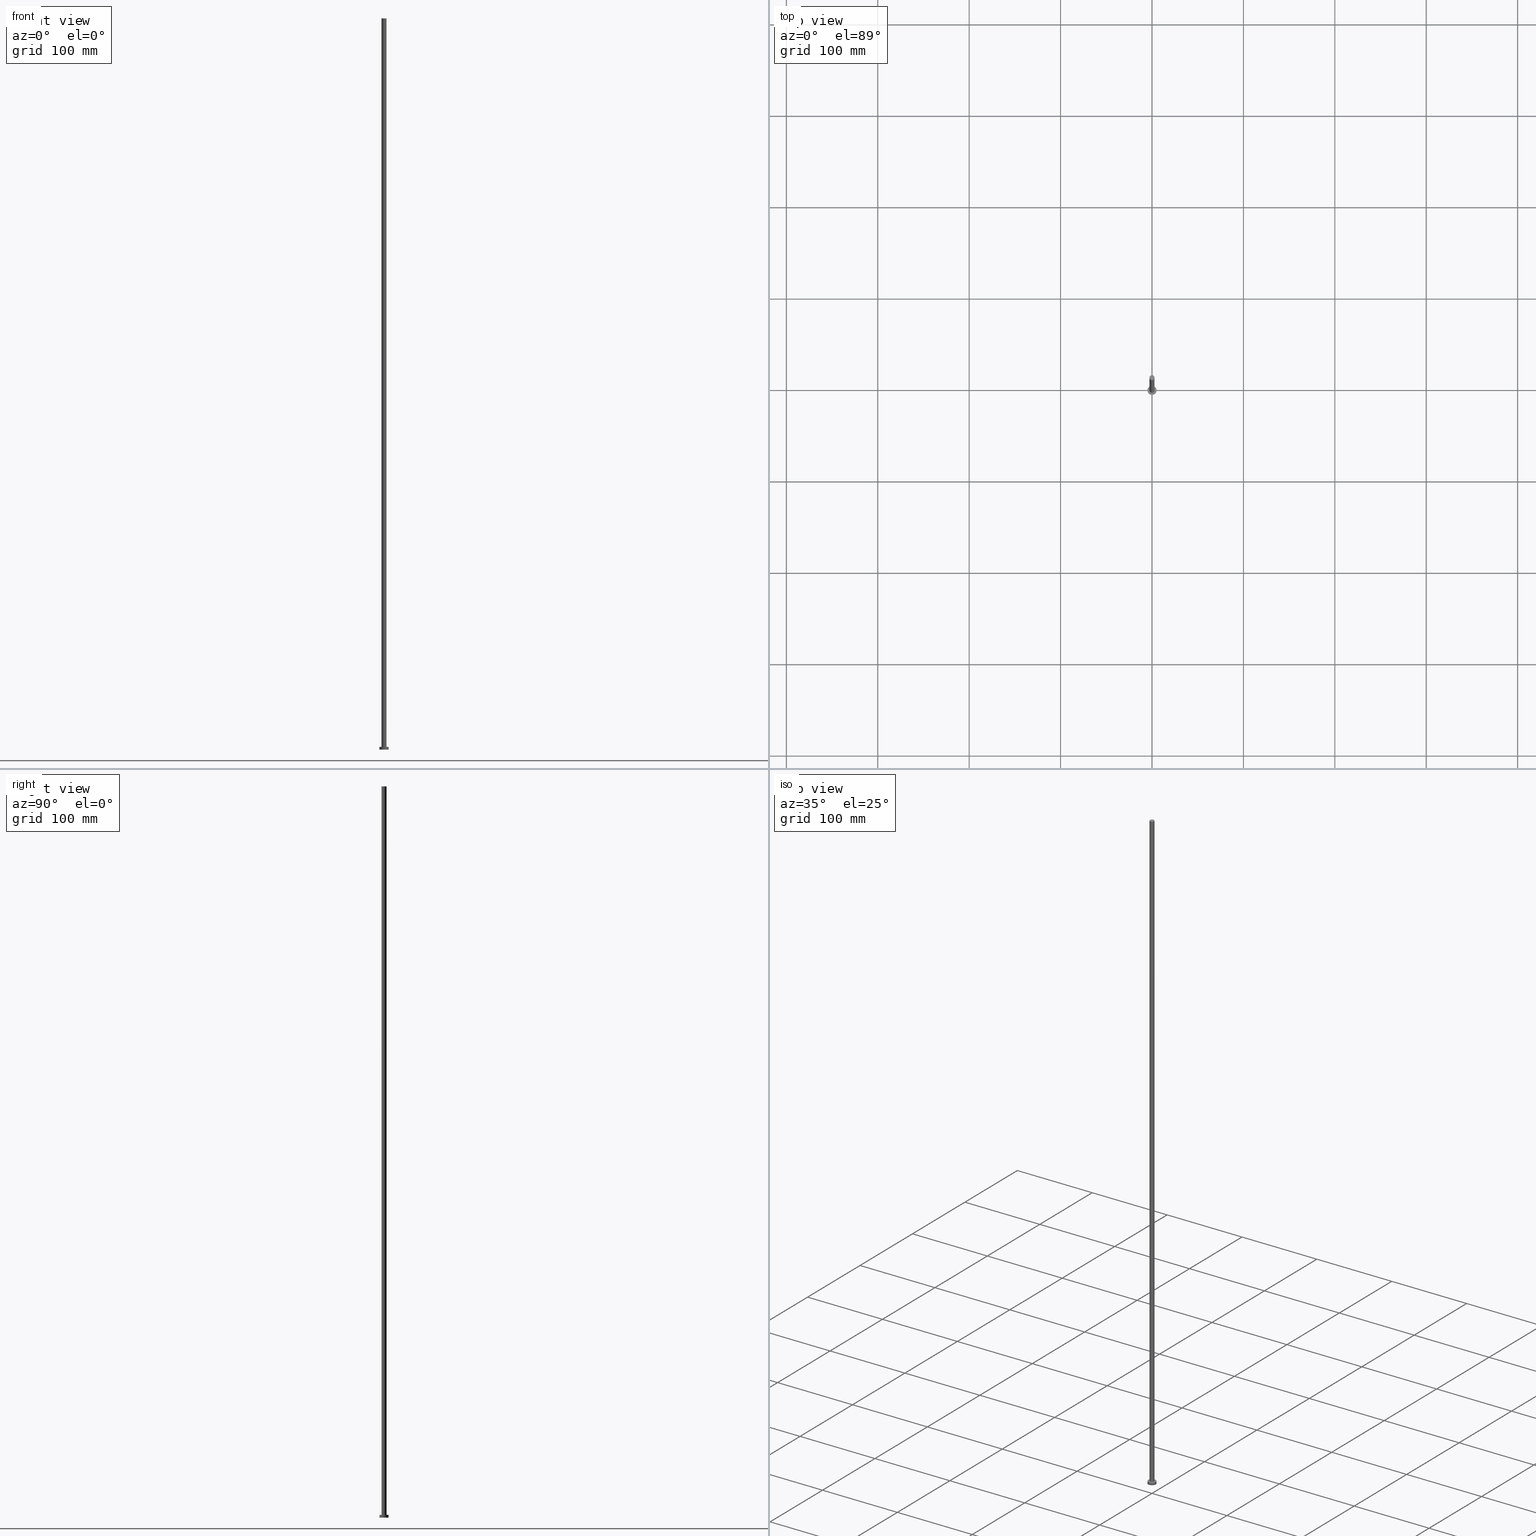
[diagram: canonical four-view strip — front | top / right | iso, engineering-drawing reading convention]
A machine part, canonical four-view strip (front | top / right | iso — engineering-drawing reading convention). The complete STEP part file that produces these views, byte-faithful:
ISO-10303-21;
HEADER;
FILE_DESCRIPTION (( 'STEP AP203' ),
    '1' );
FILE_NAME ('71dc.STEP',
    '2026-02-06T12:40:29',
    ( '' ),
    ( '' ),
    'SwSTEP 2.0',
    'SolidWorks 2019',
    '' );
FILE_SCHEMA (( 'CONFIG_CONTROL_DESIGN' ));
ENDSEC;

DATA;
#1 = PRODUCT_DEFINITION ( 'NEZN�M�', '', #220, #121 ) ;
#2 = PERSON_AND_ORGANIZATION_ROLE ( 'design_owner' ) ;
#3 = DATE_AND_TIME ( #154, #241 ) ;
#4 = AXIS2_PLACEMENT_3D ( 'NONE', #59, #172, #187 ) ;
#5 = CARTESIAN_POINT ( 'NONE',  ( 5.000000000000000000, 6.123233995736766282E-16, 3.000000000000000000 ) ) ;
#6 = ORIENTED_EDGE ( 'NONE', *, *, #170, .F. ) ;
#7 = PERSON_AND_ORGANIZATION ( #144, #135 ) ;
#8 = PERSON_AND_ORGANIZATION_ROLE ( 'classification_officer' ) ;
#9 = DIRECTION ( 'NONE',  ( -1.000000000000000000, 0.000000000000000000, 0.000000000000000000 ) ) ;
#10 = ORIENTED_EDGE ( 'NONE', *, *, #41, .F. ) ;
#11 = CYLINDRICAL_SURFACE ( 'NONE', #152, 2.750000000000000000 ) ;
#12 = CARTESIAN_POINT ( 'NONE',  ( 0.000000000000000000, 0.000000000000000000, 800.0000000000000000 ) ) ;
#13 = VERTEX_POINT ( 'NONE', #117 ) ;
#14 = DIRECTION ( 'NONE',  ( 0.000000000000000000, 0.000000000000000000, 1.000000000000000000 ) ) ;
#15 = ORIENTED_EDGE ( 'NONE', *, *, #44, .T. ) ;
#16 = CIRCLE ( 'NONE', #205, 2.750000000000000000 ) ;
#17 = SHAPE_DEFINITION_REPRESENTATION ( #90, #26 ) ;
#18 = ORIENTED_EDGE ( 'NONE', *, *, #100, .F. ) ;
#19 = FACE_OUTER_BOUND ( 'NONE', #107, .T. ) ;
#20 = APPLICATION_PROTOCOL_DEFINITION ( 'international standard', 'config_control_design', 1994, #158 ) ;
#21 = CC_DESIGN_PERSON_AND_ORGANIZATION_ASSIGNMENT ( #28, #22, ( #1 ) ) ;
#22 = PERSON_AND_ORGANIZATION_ROLE ( 'creator' ) ;
#23 = CIRCLE ( 'NONE', #197, 2.750000000000000000 ) ;
#24 = CARTESIAN_POINT ( 'NONE',  ( -5.000000000000000000, 0.000000000000000000, 3.000000000000000000 ) ) ;
#25 = ORIENTED_EDGE ( 'NONE', *, *, #209, .T. ) ;
#26 = ADVANCED_BREP_SHAPE_REPRESENTATION ( '71dc', ( #146, #243 ), #210 ) ;
#27 = CARTESIAN_POINT ( 'NONE',  ( 0.000000000000000000, 0.000000000000000000, 0.000000000000000000 ) ) ;
#28 = PERSON_AND_ORGANIZATION ( #144, #135 ) ;
#29 = FACE_OUTER_BOUND ( 'NONE', #86, .T. ) ;
#30 = LOCAL_TIME ( 13, 40, 29.00000000000000000, #125 ) ;
#31 = CARTESIAN_POINT ( 'NONE',  ( -2.750000000000000000, 0.000000000000000000, 800.0000000000000000 ) ) ;
#32 = EDGE_CURVE ( 'NONE', #202, #251, #250, .T. ) ;
#33 = DIRECTION ( 'NONE',  ( 0.000000000000000000, 0.000000000000000000, 1.000000000000000000 ) ) ;
#34 = EDGE_CURVE ( 'NONE', #202, #140, #82, .T. ) ;
#35 = CIRCLE ( 'NONE', #63, 5.000000000000000000 ) ;
#36 = CARTESIAN_POINT ( 'NONE',  ( 0.000000000000000000, 0.000000000000000000, 3.000000000000000000 ) ) ;
#37 = DIRECTION ( 'NONE',  ( -1.000000000000000000, 0.000000000000000000, 0.000000000000000000 ) ) ;
#38 = ORIENTED_EDGE ( 'NONE', *, *, #234, .T. ) ;
#39 = PERSON_AND_ORGANIZATION_ROLE ( 'creator' ) ;
#40 = AXIS2_PLACEMENT_3D ( 'NONE', #78, #70, #167 ) ;
#41 = EDGE_CURVE ( 'NONE', #217, #251, #119, .T. ) ;
#42 = COORDINATED_UNIVERSAL_TIME_OFFSET ( 1, 0, .AHEAD. ) ;
#43 = CARTESIAN_POINT ( 'NONE',  ( 0.000000000000000000, 0.000000000000000000, 800.0000000000000000 ) ) ;
#44 = EDGE_CURVE ( 'NONE', #13, #182, #67, .T. ) ;
#45 = PERSON_AND_ORGANIZATION_ROLE ( 'design_supplier' ) ;
#46 = CLOSED_SHELL ( 'NONE', ( #113, #168, #85, #109, #244, #95, #162 ) ) ;
#47 = APPROVAL_STATUS ( 'not_yet_approved' ) ;
#48 = DIRECTION ( 'NONE',  ( 0.000000000000000000, 0.000000000000000000, 1.000000000000000000 ) ) ;
#49 = ORIENTED_EDGE ( 'NONE', *, *, #44, .F. ) ;
#50 = SECURITY_CLASSIFICATION ( '', '', #245 ) ;
#51 = VECTOR ( 'NONE', #155, 1000.000000000000000 ) ;
#52 = CC_DESIGN_APPROVAL ( #223, ( #220 ) ) ;
#53 = EDGE_LOOP ( 'NONE', ( #139, #204, #149, #143 ) ) ;
#54 = PLANE ( 'NONE',  #215 ) ;
#55 = DIRECTION ( 'NONE',  ( -0.000000000000000000, -0.000000000000000000, -1.000000000000000000 ) ) ;
#56 = CIRCLE ( 'NONE', #4, 2.750000000000000000 ) ;
#57 = PRODUCT_RELATED_PRODUCT_CATEGORY ( 'detail', '', ( #207 ) ) ;
#58 = PERSON_AND_ORGANIZATION ( #144, #135 ) ;
#59 = CARTESIAN_POINT ( 'NONE',  ( 0.000000000000000000, 0.000000000000000000, 800.0000000000000000 ) ) ;
#60 = ORIENTED_EDGE ( 'NONE', *, *, #234, .F. ) ;
#61 = APPROVAL_DATE_TIME ( #3, #223 ) ;
#62 = CARTESIAN_POINT ( 'NONE',  ( -2.750000000000000000, 0.000000000000000000, 3.000000000000000000 ) ) ;
#63 = AXIS2_PLACEMENT_3D ( 'NONE', #84, #246, #148 ) ;
#64 = CALENDAR_DATE ( 2026, 6, 2 ) ;
#65 = APPROVAL_STATUS ( 'not_yet_approved' ) ;
#66 = APPLICATION_CONTEXT ( 'configuration controlled 3d designs of mechanical parts and assemblies' ) ;
#67 = CIRCLE ( 'NONE', #142, 2.750000000000000000 ) ;
#68 = LOCAL_TIME ( 13, 40, 29.00000000000000000, #150 ) ;
#69 = LINE ( 'NONE', #91, #51 ) ;
#70 = DIRECTION ( 'NONE',  ( 0.000000000000000000, 0.000000000000000000, 1.000000000000000000 ) ) ;
#71 = APPROVAL ( #47, 'NEUR�EN�' ) ;
#72 = EDGE_LOOP ( 'NONE', ( #10, #194 ) ) ;
#73 = APPROVAL_PERSON_ORGANIZATION ( #58, #110, #190 ) ;
#74 = DATE_AND_TIME ( #81, #30 ) ;
#75 = CARTESIAN_POINT ( 'NONE',  ( -5.000000000000000000, 0.000000000000000000, 0.000000000000000000 ) ) ;
#76 = DIRECTION ( 'NONE',  ( -0.000000000000000000, -0.000000000000000000, -1.000000000000000000 ) ) ;
#77 = CARTESIAN_POINT ( 'NONE',  ( 2.750000000000000000, 3.367778697655221012E-16, 3.000000000000000000 ) ) ;
#78 = CARTESIAN_POINT ( 'NONE',  ( 0.000000000000000000, 0.000000000000000000, 3.000000000000000000 ) ) ;
#79 = AXIS2_PLACEMENT_3D ( 'NONE', #221, #55, #115 ) ;
#80 = EDGE_CURVE ( 'NONE', #140, #202, #128, .T. ) ;
#81 = CALENDAR_DATE ( 2026, 6, 2 ) ;
#82 = CIRCLE ( 'NONE', #233, 5.000000000000000000 ) ;
#83 = PERSON_AND_ORGANIZATION ( #144, #135 ) ;
#84 = CARTESIAN_POINT ( 'NONE',  ( 0.000000000000000000, 0.000000000000000000, 0.000000000000000000 ) ) ;
#85 = ADVANCED_FACE ( 'NONE', ( #240 ), #160, .T. ) ;
#86 = EDGE_LOOP ( 'NONE', ( #174, #132 ) ) ;
#87 = DIRECTION ( 'NONE',  ( 1.000000000000000000, 0.000000000000000000, -0.000000000000000000 ) ) ;
#88 = APPROVAL_STATUS ( 'not_yet_approved' ) ;
#89 = PERSON_AND_ORGANIZATION ( #144, #135 ) ;
#90 = PRODUCT_DEFINITION_SHAPE ( 'NONE', 'NONE',  #1 ) ;
#91 = CARTESIAN_POINT ( 'NONE',  ( 2.750000000000000000, 3.367778697655221012E-16, 800.0000000000000000 ) ) ;
#92 = APPROVAL_PERSON_ORGANIZATION ( #89, #223, #230 ) ;
#93 = PLANE ( 'NONE',  #176 ) ;
#94 = CARTESIAN_POINT ( 'NONE',  ( 5.000000000000000000, 6.123233995736766282E-16, 3.000000000000000000 ) ) ;
#95 = ADVANCED_FACE ( 'NONE', ( #196 ), #178, .T. ) ;
#96 = CARTESIAN_POINT ( 'NONE',  ( 0.000000000000000000, 0.000000000000000000, 800.0000000000000000 ) ) ;
#97 = ORIENTED_EDGE ( 'NONE', *, *, #100, .T. ) ;
#98 = DIRECTION ( 'NONE',  ( 0.000000000000000000, 0.000000000000000000, 1.000000000000000000 ) ) ;
#99 = LINE ( 'NONE', #31, #145 ) ;
#100 = EDGE_CURVE ( 'NONE', #173, #227, #23, .T. ) ;
#101 = DIRECTION ( 'NONE',  ( 1.000000000000000000, 0.000000000000000000, -0.000000000000000000 ) ) ;
#102 =( NAMED_UNIT ( * ) PLANE_ANGLE_UNIT ( ) SI_UNIT ( $, .RADIAN. ) );
#103 = DIRECTION ( 'NONE',  ( 1.000000000000000000, 0.000000000000000000, 0.000000000000000000 ) ) ;
#104 =( LENGTH_UNIT ( ) NAMED_UNIT ( * ) SI_UNIT ( .MILLI., .METRE. ) );
#105 = DATE_AND_TIME ( #108, #68 ) ;
#106 = DIRECTION ( 'NONE',  ( 1.000000000000000000, 0.000000000000000000, 0.000000000000000000 ) ) ;
#107 = EDGE_LOOP ( 'NONE', ( #237, #177, #25, #137 ) ) ;
#108 = CALENDAR_DATE ( 2026, 6, 2 ) ;
#109 = ADVANCED_FACE ( 'NONE', ( #201, #29 ), #93, .T. ) ;
#110 = APPROVAL ( #65, 'NEUR�EN�' ) ;
#111 = COORDINATED_UNIVERSAL_TIME_OFFSET ( 1, 0, .AHEAD. ) ;
#112 = APPROVAL_DATE_TIME ( #74, #71 ) ;
#113 = ADVANCED_FACE ( 'NONE', ( #116 ), #11, .T. ) ;
#114 = FACE_OUTER_BOUND ( 'NONE', #118, .T. ) ;
#115 = DIRECTION ( 'NONE',  ( -1.000000000000000000, 0.000000000000000000, 0.000000000000000000 ) ) ;
#116 = FACE_OUTER_BOUND ( 'NONE', #129, .T. ) ;
#117 = CARTESIAN_POINT ( 'NONE',  ( 2.750000000000000000, 3.367778697655221012E-16, 800.0000000000000000 ) ) ;
#118 = EDGE_LOOP ( 'NONE', ( #141, #15 ) ) ;
#119 = CIRCLE ( 'NONE', #156, 5.000000000000000000 ) ;
#120 = CARTESIAN_POINT ( 'NONE',  ( 0.000000000000000000, 0.000000000000000000, 0.000000000000000000 ) ) ;
#121 = DESIGN_CONTEXT ( 'detailed design', #158, 'design' ) ;
#122 = CC_DESIGN_PERSON_AND_ORGANIZATION_ASSIGNMENT ( #222, #2, ( #207 ) ) ;
#123 = LOCAL_TIME ( 13, 40, 29.00000000000000000, #111 ) ;
#124 = VECTOR ( 'NONE', #228, 1000.000000000000000 ) ;
#125 = COORDINATED_UNIVERSAL_TIME_OFFSET ( 1, 0, .AHEAD. ) ;
#126 = EDGE_CURVE ( 'NONE', #13, #227, #69, .T. ) ;
#127 = CARTESIAN_POINT ( 'NONE',  ( -2.750000000000000000, 0.000000000000000000, 800.0000000000000000 ) ) ;
#128 = CIRCLE ( 'NONE', #40, 5.000000000000000000 ) ;
#129 = EDGE_LOOP ( 'NONE', ( #49, #219, #184, #60 ) ) ;
#130 = DATE_AND_TIME ( #64, #253 ) ;
#131 = CC_DESIGN_PERSON_AND_ORGANIZATION_ASSIGNMENT ( #171, #45, ( #220 ) ) ;
#132 = ORIENTED_EDGE ( 'NONE', *, *, #34, .T. ) ;
#133 = DIRECTION ( 'NONE',  ( 0.000000000000000000, 0.000000000000000000, 1.000000000000000000 ) ) ;
#134 = PERSON_AND_ORGANIZATION ( #144, #135 ) ;
#135 = ORGANIZATION ( 'NEUR�EN�', 'NEUR�EN�', '' ) ;
#136 = DIRECTION ( 'NONE',  ( 1.000000000000000000, 0.000000000000000000, 0.000000000000000000 ) ) ;
#137 = ORIENTED_EDGE ( 'NONE', *, *, #193, .F. ) ;
#138 = AXIS2_PLACEMENT_3D ( 'NONE', #249, #236, #159 ) ;
#139 = ORIENTED_EDGE ( 'NONE', *, *, #32, .F. ) ;
#140 = VERTEX_POINT ( 'NONE', #24 ) ;
#141 = ORIENTED_EDGE ( 'NONE', *, *, #170, .T. ) ;
#142 = AXIS2_PLACEMENT_3D ( 'NONE', #12, #181, #103 ) ;
#143 = ORIENTED_EDGE ( 'NONE', *, *, #41, .T. ) ;
#144 = PERSON ( 'NEUR�EN�', 'NEUR�EN�', 'NEUR�EN�', ('NEUR�EN�'), ('NEUR�EN�'), ('NEUR�EN�') ) ;
#145 = VECTOR ( 'NONE', #224, 1000.000000000000000 ) ;
#146 = MANIFOLD_SOLID_BREP ( 'P�idat vysunut�m3', #46 ) ;
#147 = APPROVAL_DATE_TIME ( #130, #110 ) ;
#148 = DIRECTION ( 'NONE',  ( 1.000000000000000000, 0.000000000000000000, 0.000000000000000000 ) ) ;
#149 = ORIENTED_EDGE ( 'NONE', *, *, #193, .T. ) ;
#150 = COORDINATED_UNIVERSAL_TIME_OFFSET ( 1, 0, .AHEAD. ) ;
#151 = DIRECTION ( 'NONE',  ( 0.000000000000000000, 0.000000000000000000, 1.000000000000000000 ) ) ;
#152 = AXIS2_PLACEMENT_3D ( 'NONE', #96, #180, #9 ) ;
#153 = DIRECTION ( 'NONE',  ( 1.000000000000000000, 0.000000000000000000, 0.000000000000000000 ) ) ;
#154 = CALENDAR_DATE ( 2026, 6, 2 ) ;
#155 = DIRECTION ( 'NONE',  ( -0.000000000000000000, -0.000000000000000000, -1.000000000000000000 ) ) ;
#156 = AXIS2_PLACEMENT_3D ( 'NONE', #120, #98, #252 ) ;
#157 = APPROVAL_PERSON_ORGANIZATION ( #7, #71, #195 ) ;
#158 = APPLICATION_CONTEXT ( 'configuration controlled 3d designs of mechanical parts and assemblies' ) ;
#159 = DIRECTION ( 'NONE',  ( -1.000000000000000000, 0.000000000000000000, 0.000000000000000000 ) ) ;
#160 = CYLINDRICAL_SURFACE ( 'NONE', #79, 5.000000000000000000 ) ;
#161 = APPLICATION_PROTOCOL_DEFINITION ( 'international standard', 'config_control_design', 1994, #66 ) ;
#162 = ADVANCED_FACE ( 'NONE', ( #114 ), #231, .T. ) ;
#163 = CC_DESIGN_DATE_AND_TIME_ASSIGNMENT ( #248, #232, ( #50 ) ) ;
#164 = ORIENTED_EDGE ( 'NONE', *, *, #175, .F. ) ;
#165 = FACE_OUTER_BOUND ( 'NONE', #72, .T. ) ;
#166 = DIRECTION ( 'NONE',  ( 0.000000000000000000, 0.000000000000000000, 1.000000000000000000 ) ) ;
#167 = DIRECTION ( 'NONE',  ( 1.000000000000000000, 0.000000000000000000, 0.000000000000000000 ) ) ;
#168 = ADVANCED_FACE ( 'NONE', ( #19 ), #247, .T. ) ;
#169 =( NAMED_UNIT ( * ) SI_UNIT ( $, .STERADIAN. ) SOLID_ANGLE_UNIT ( ) );
#170 = EDGE_CURVE ( 'NONE', #182, #13, #56, .T. ) ;
#171 = PERSON_AND_ORGANIZATION ( #144, #135 ) ;
#172 = DIRECTION ( 'NONE',  ( 0.000000000000000000, 0.000000000000000000, 1.000000000000000000 ) ) ;
#173 = VERTEX_POINT ( 'NONE', #62 ) ;
#174 = ORIENTED_EDGE ( 'NONE', *, *, #80, .T. ) ;
#175 = EDGE_CURVE ( 'NONE', #227, #173, #16, .T. ) ;
#176 = AXIS2_PLACEMENT_3D ( 'NONE', #235, #48, #213 ) ;
#177 = ORIENTED_EDGE ( 'NONE', *, *, #32, .T. ) ;
#178 = CYLINDRICAL_SURFACE ( 'NONE', #138, 2.750000000000000000 ) ;
#179 = CC_DESIGN_PERSON_AND_ORGANIZATION_ASSIGNMENT ( #83, #39, ( #220 ) ) ;
#180 = DIRECTION ( 'NONE',  ( -0.000000000000000000, -0.000000000000000000, -1.000000000000000000 ) ) ;
#181 = DIRECTION ( 'NONE',  ( 0.000000000000000000, 0.000000000000000000, 1.000000000000000000 ) ) ;
#182 = VERTEX_POINT ( 'NONE', #127 ) ;
#183 = CARTESIAN_POINT ( 'NONE',  ( 5.000000000000000000, 6.123233995736766282E-16, 0.000000000000000000 ) ) ;
#184 = ORIENTED_EDGE ( 'NONE', *, *, #175, .T. ) ;
#185 = AXIS2_PLACEMENT_3D ( 'NONE', #225, #189, #37 ) ;
#186 = DATE_TIME_ROLE ( 'creation_date' ) ;
#187 = DIRECTION ( 'NONE',  ( 1.000000000000000000, 0.000000000000000000, 0.000000000000000000 ) ) ;
#188 = CC_DESIGN_APPROVAL ( #71, ( #1 ) ) ;
#189 = DIRECTION ( 'NONE',  ( -0.000000000000000000, -0.000000000000000000, -1.000000000000000000 ) ) ;
#190 = APPROVAL_ROLE ( '' ) ;
#191 = COORDINATED_UNIVERSAL_TIME_OFFSET ( 1, 0, .AHEAD. ) ;
#192 = CALENDAR_DATE ( 2026, 6, 2 ) ;
#193 = EDGE_CURVE ( 'NONE', #140, #217, #226, .T. ) ;
#194 = ORIENTED_EDGE ( 'NONE', *, *, #209, .F. ) ;
#195 = APPROVAL_ROLE ( '' ) ;
#196 = FACE_OUTER_BOUND ( 'NONE', #214, .T. ) ;
#197 = AXIS2_PLACEMENT_3D ( 'NONE', #199, #218, #136 ) ;
#198 = CARTESIAN_POINT ( 'NONE',  ( 0.000000000000000000, 0.000000000000000000, 3.000000000000000000 ) ) ;
#199 = CARTESIAN_POINT ( 'NONE',  ( 0.000000000000000000, 0.000000000000000000, 3.000000000000000000 ) ) ;
#200 = EDGE_LOOP ( 'NONE', ( #18, #164 ) ) ;
#201 = FACE_BOUND ( 'NONE', #200, .T. ) ;
#202 = VERTEX_POINT ( 'NONE', #5 ) ;
#203 = VECTOR ( 'NONE', #76, 1000.000000000000000 ) ;
#204 = ORIENTED_EDGE ( 'NONE', *, *, #80, .F. ) ;
#205 = AXIS2_PLACEMENT_3D ( 'NONE', #36, #151, #106 ) ;
#206 = CC_DESIGN_PERSON_AND_ORGANIZATION_ASSIGNMENT ( #134, #8, ( #50 ) ) ;
#207 = PRODUCT ( '71dc', '71dc', '', ( #216 ) ) ;
#208 = CARTESIAN_POINT ( 'NONE',  ( -5.000000000000000000, 0.000000000000000000, 3.000000000000000000 ) ) ;
#209 = EDGE_CURVE ( 'NONE', #251, #217, #35, .T. ) ;
#210 =( GEOMETRIC_REPRESENTATION_CONTEXT ( 3 ) GLOBAL_UNCERTAINTY_ASSIGNED_CONTEXT ( ( #254 ) ) GLOBAL_UNIT_ASSIGNED_CONTEXT ( ( #104, #102, #169 ) ) REPRESENTATION_CONTEXT ( 'NONE', 'WORKASPACE' ) );
#211 = ORIENTED_EDGE ( 'NONE', *, *, #126, .F. ) ;
#212 = CC_DESIGN_APPROVAL ( #110, ( #50 ) ) ;
#213 = DIRECTION ( 'NONE',  ( 1.000000000000000000, 0.000000000000000000, -0.000000000000000000 ) ) ;
#214 = EDGE_LOOP ( 'NONE', ( #211, #6, #38, #97 ) ) ;
#215 = AXIS2_PLACEMENT_3D ( 'NONE', #27, #14, #101 ) ;
#216 = MECHANICAL_CONTEXT ( 'NONE', #66, 'mechanical' ) ;
#217 = VERTEX_POINT ( 'NONE', #75 ) ;
#218 = DIRECTION ( 'NONE',  ( 0.000000000000000000, 0.000000000000000000, 1.000000000000000000 ) ) ;
#219 = ORIENTED_EDGE ( 'NONE', *, *, #126, .T. ) ;
#220 = PRODUCT_DEFINITION_FORMATION_WITH_SPECIFIED_SOURCE ( 'LIBOVOLN�', '', #207, .NOT_KNOWN. ) ;
#221 = CARTESIAN_POINT ( 'NONE',  ( 0.000000000000000000, 0.000000000000000000, 3.000000000000000000 ) ) ;
#222 = PERSON_AND_ORGANIZATION ( #144, #135 ) ;
#223 = APPROVAL ( #88, 'NEUR�EN�' ) ;
#224 = DIRECTION ( 'NONE',  ( -0.000000000000000000, -0.000000000000000000, -1.000000000000000000 ) ) ;
#225 = CARTESIAN_POINT ( 'NONE',  ( 0.000000000000000000, 0.000000000000000000, 3.000000000000000000 ) ) ;
#226 = LINE ( 'NONE', #208, #124 ) ;
#227 = VERTEX_POINT ( 'NONE', #77 ) ;
#228 = DIRECTION ( 'NONE',  ( -0.000000000000000000, -0.000000000000000000, -1.000000000000000000 ) ) ;
#229 = AXIS2_PLACEMENT_3D ( 'NONE', #43, #133, #87 ) ;
#230 = APPROVAL_ROLE ( '' ) ;
#231 = PLANE ( 'NONE',  #229 ) ;
#232 = DATE_TIME_ROLE ( 'classification_date' ) ;
#233 = AXIS2_PLACEMENT_3D ( 'NONE', #198, #166, #238 ) ;
#234 = EDGE_CURVE ( 'NONE', #182, #173, #99, .T. ) ;
#235 = CARTESIAN_POINT ( 'NONE',  ( 0.000000000000000000, 0.000000000000000000, 3.000000000000000000 ) ) ;
#236 = DIRECTION ( 'NONE',  ( -0.000000000000000000, -0.000000000000000000, -1.000000000000000000 ) ) ;
#237 = ORIENTED_EDGE ( 'NONE', *, *, #34, .F. ) ;
#238 = DIRECTION ( 'NONE',  ( 1.000000000000000000, 0.000000000000000000, 0.000000000000000000 ) ) ;
#239 = CC_DESIGN_SECURITY_CLASSIFICATION ( #50, ( #220 ) ) ;
#240 = FACE_OUTER_BOUND ( 'NONE', #53, .T. ) ;
#241 = LOCAL_TIME ( 13, 40, 29.00000000000000000, #191 ) ;
#242 = CC_DESIGN_DATE_AND_TIME_ASSIGNMENT ( #105, #186, ( #1 ) ) ;
#243 = AXIS2_PLACEMENT_3D ( 'NONE', #255, #33, #153 ) ;
#244 = ADVANCED_FACE ( 'NONE', ( #165 ), #54, .F. ) ;
#245 = SECURITY_CLASSIFICATION_LEVEL ( 'unclassified' ) ;
#246 = DIRECTION ( 'NONE',  ( 0.000000000000000000, 0.000000000000000000, 1.000000000000000000 ) ) ;
#247 = CYLINDRICAL_SURFACE ( 'NONE', #185, 5.000000000000000000 ) ;
#248 = DATE_AND_TIME ( #192, #123 ) ;
#249 = CARTESIAN_POINT ( 'NONE',  ( 0.000000000000000000, 0.000000000000000000, 800.0000000000000000 ) ) ;
#250 = LINE ( 'NONE', #94, #203 ) ;
#251 = VERTEX_POINT ( 'NONE', #183 ) ;
#252 = DIRECTION ( 'NONE',  ( 1.000000000000000000, 0.000000000000000000, 0.000000000000000000 ) ) ;
#253 = LOCAL_TIME ( 13, 40, 29.00000000000000000, #42 ) ;
#254 = UNCERTAINTY_MEASURE_WITH_UNIT (LENGTH_MEASURE( 1.000000000000000082E-05 ), #104, 'distance_accuracy_value', 'NONE');
#255 = CARTESIAN_POINT ( 'NONE',  ( 0.000000000000000000, 0.000000000000000000, 0.000000000000000000 ) ) ;
ENDSEC;
END-ISO-10303-21;
